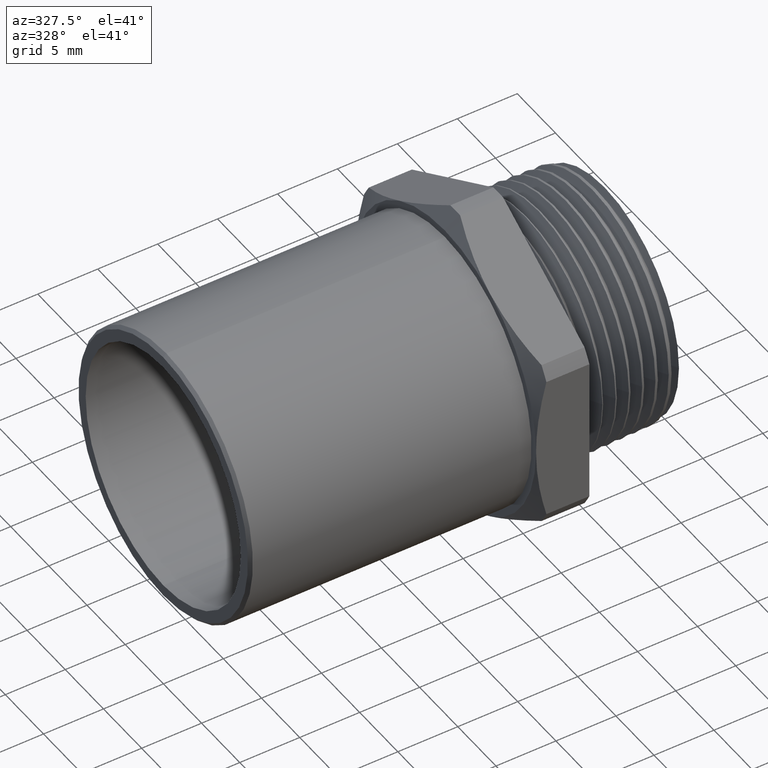
[diagram: clean part render]
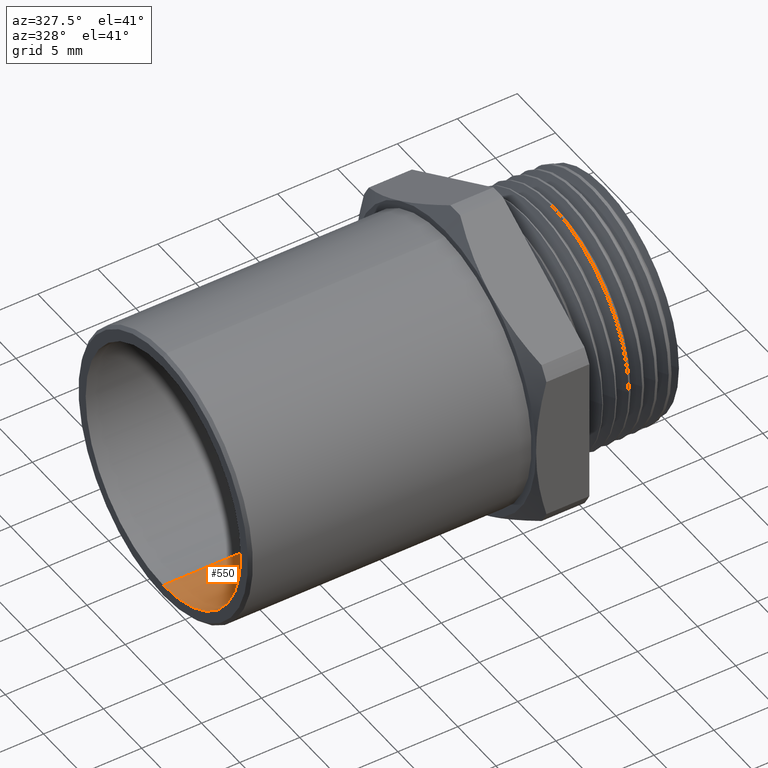
[diagram: same view with one face highlighted and labeled with its STEP entity id]
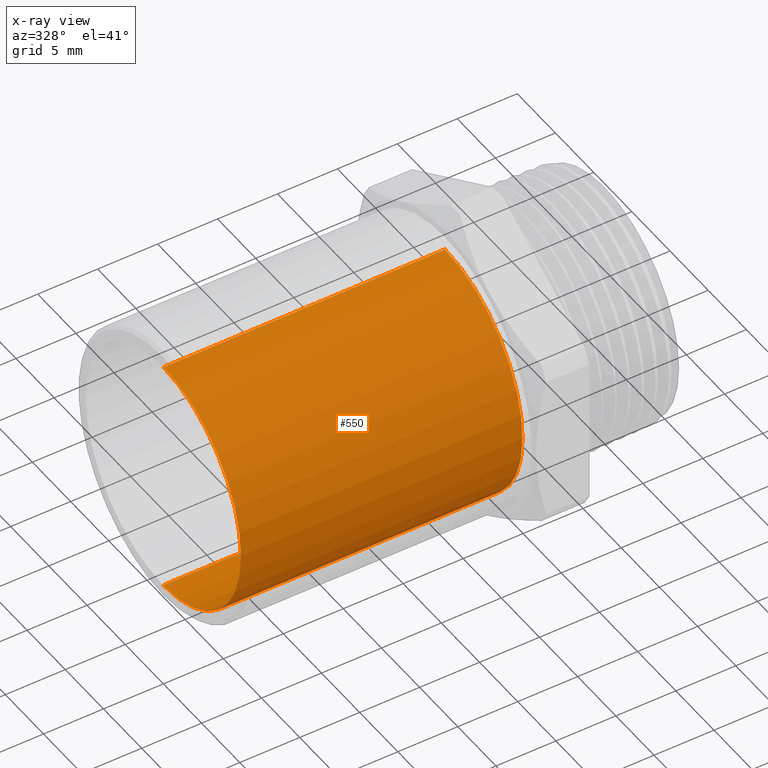
[diagram: x-ray of the same camera — body ghosted, the highlighted face saturated]
A machine part, auxiliary view. The second image highlights one B-rep face of the part: STEP entity #550.
The next image is the same camera in x-ray: the body ghosted, the highlighted face saturated — about 0% of this face is hidden behind the body in this view.
In plain terms, the highlighted cylindrical surface (partial cylindrical patch) has radius 10.16 mm, axis along (-1, 0, 0).
Its self-contained STEP definition (entity closure, byte-faithful):
#494 = VERTEX_POINT ( 'NONE', #1761 ) ;
#495 = EDGE_CURVE ( 'NONE', #494, #540, #1759, .T. ) ;
#501 = EDGE_CURVE ( 'NONE', #494, #503, #1749, .T. ) ;
#503 = VERTEX_POINT ( 'NONE', #1745 ) ;
#508 = ORIENTED_EDGE ( 'NONE', *, *, #510, .T. ) ;
#510 = EDGE_CURVE ( 'NONE', #503, #521, #1795, .T. ) ;
#512 = ORIENTED_EDGE ( 'NONE', *, *, #501, .T. ) ;
#521 = VERTEX_POINT ( 'NONE', #1777 ) ;
#530 = EDGE_CURVE ( 'NONE', #540, #521, #1808, .T. ) ;
#531 = ORIENTED_EDGE ( 'NONE', *, *, #530, .F. ) ;
#540 = VERTEX_POINT ( 'NONE', #1845 ) ;
#546 = EDGE_LOOP ( 'NONE', ( #557, #512, #508, #531 ) ) ;
#550 = ADVANCED_FACE ( 'NONE', ( #1828 ), #1890, .F. ) ;
#557 = ORIENTED_EDGE ( 'NONE', *, *, #495, .F. ) ;
#1745 = CARTESIAN_POINT ( 'NONE',  ( -1.450000000000000200, 4.898587196589414300E-017, -0.4000000000000000800 ) ) ;
#1746 = DIRECTION ( 'NONE',  ( -1.000000000000000000, 0.0000000000000000000, 0.0000000000000000000 ) ) ;
#1747 = VECTOR ( 'NONE', #1746, 39.37007874015748100 ) ;
#1748 = CARTESIAN_POINT ( 'NONE',  ( -0.5911096051061856000, 4.898587196589414300E-017, -0.4000000000000000800 ) ) ;
#1749 = LINE ( 'NONE', #1748, #1747 ) ;
#1755 = DIRECTION ( 'NONE',  ( 0.0000000000000000000, 0.0000000000000000000, 1.000000000000000000 ) ) ;
#1756 = DIRECTION ( 'NONE',  ( -1.000000000000000000, 0.0000000000000000000, 0.0000000000000000000 ) ) ;
#1757 = CARTESIAN_POINT ( 'NONE',  ( -0.5250000000000000200, 0.0000000000000000000, 0.0000000000000000000 ) ) ;
#1758 = AXIS2_PLACEMENT_3D ( 'NONE', #1757, #1756, #1755 ) ;
#1759 = CIRCLE ( 'NONE', #1758, 0.4000000000000000800 ) ;
#1761 = CARTESIAN_POINT ( 'NONE',  ( -0.5250000000000000200, 4.898587196589414300E-017, -0.4000000000000000800 ) ) ;
#1777 = CARTESIAN_POINT ( 'NONE',  ( -1.450000000000000200, 0.0000000000000000000, 0.4000000000000000800 ) ) ;
#1791 = DIRECTION ( 'NONE',  ( 0.0000000000000000000, 0.0000000000000000000, 1.000000000000000000 ) ) ;
#1792 = DIRECTION ( 'NONE',  ( -1.000000000000000000, 0.0000000000000000000, 0.0000000000000000000 ) ) ;
#1793 = CARTESIAN_POINT ( 'NONE',  ( -1.450000000000000200, 0.0000000000000000000, 0.0000000000000000000 ) ) ;
#1794 = AXIS2_PLACEMENT_3D ( 'NONE', #1793, #1792, #1791 ) ;
#1795 = CIRCLE ( 'NONE', #1794, 0.4000000000000000800 ) ;
#1805 = DIRECTION ( 'NONE',  ( -1.000000000000000000, 0.0000000000000000000, 0.0000000000000000000 ) ) ;
#1806 = VECTOR ( 'NONE', #1805, 39.37007874015748100 ) ;
#1807 = CARTESIAN_POINT ( 'NONE',  ( -0.5911096051061856000, 0.0000000000000000000, 0.4000000000000000800 ) ) ;
#1808 = LINE ( 'NONE', #1807, #1806 ) ;
#1828 = FACE_OUTER_BOUND ( 'NONE', #546, .T. ) ;
#1845 = CARTESIAN_POINT ( 'NONE',  ( -0.5250000000000000200, 0.0000000000000000000, 0.4000000000000000800 ) ) ;
#1886 = DIRECTION ( 'NONE',  ( 0.0000000000000000000, 0.0000000000000000000, 1.000000000000000000 ) ) ;
#1887 = DIRECTION ( 'NONE',  ( -1.000000000000000000, 0.0000000000000000000, 0.0000000000000000000 ) ) ;
#1888 = CARTESIAN_POINT ( 'NONE',  ( -0.5911096051061856000, 0.0000000000000000000, 0.0000000000000000000 ) ) ;
#1889 = AXIS2_PLACEMENT_3D ( 'NONE', #1888, #1887, #1886 ) ;
#1890 = CYLINDRICAL_SURFACE ( 'NONE', #1889, 0.4000000000000000800 ) ;